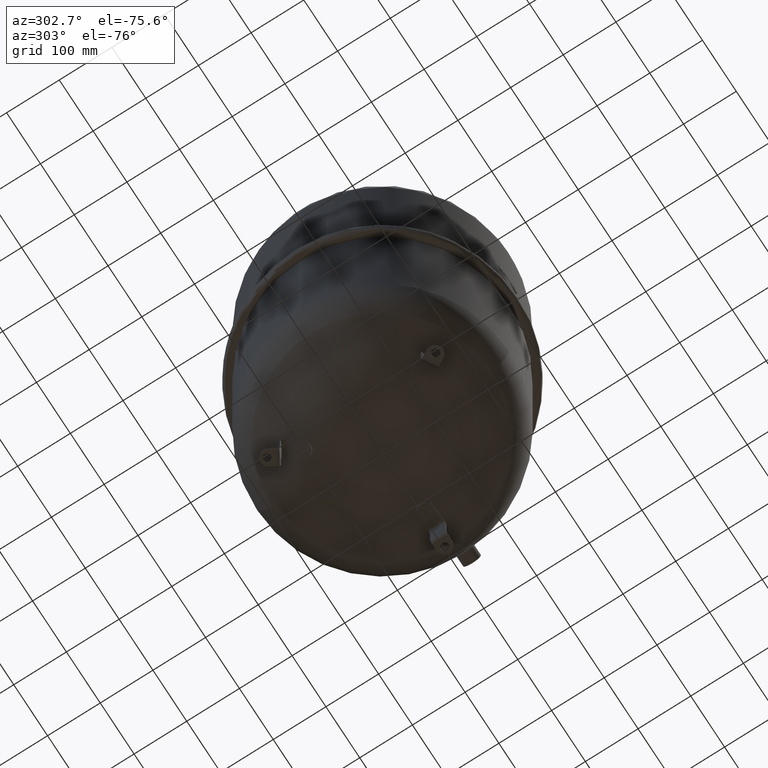
[diagram: clean part render]
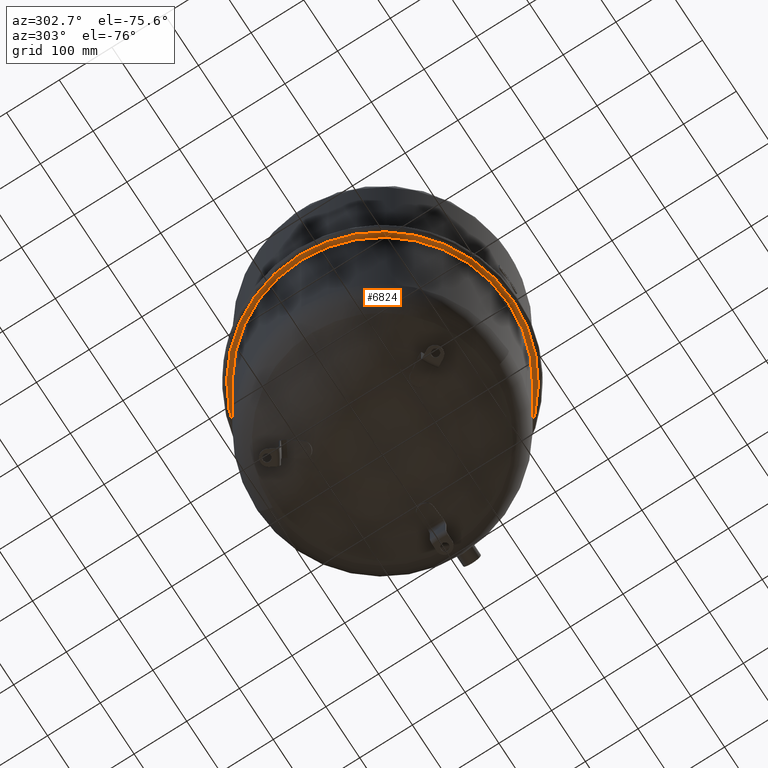
[diagram: same view with one face highlighted and labeled with its STEP entity id]
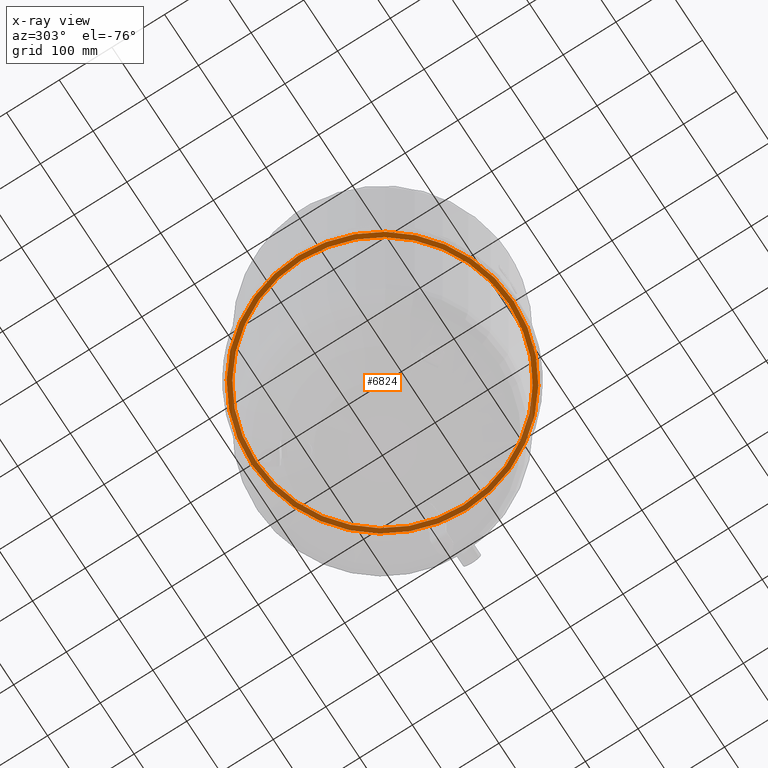
[diagram: x-ray of the same camera — body ghosted, the highlighted face saturated]
A machine part, auxiliary view. The second image highlights one B-rep face of the part: STEP entity #6824.
The next image is the same camera in x-ray: the body ghosted, the highlighted face saturated — about 44% of this face is hidden behind the body in this view.
In plain terms, the highlighted planar face has unit normal (0, 0, -1).
Its self-contained STEP definition (entity closure, byte-faithful):
#6518=CARTESIAN_POINT('',(-240.0,6.582477E-016,449.25));
#6519=VERTEX_POINT('',#6518);
#6528=CARTESIAN_POINT('',(240.0,-2.873230E-014,449.25));
#6529=VERTEX_POINT('',#6528);
#6530=CARTESIAN_POINT('',(0.0,6.582477E-016,449.25));
#6531=DIRECTION('',(0.0,0.0,-1.0));
#6532=DIRECTION('',(-1.0,0.0,0.0));
#6533=AXIS2_PLACEMENT_3D('',#6530,#6531,#6532);
#6534=CIRCLE('',#6533,240.0);
#6535=EDGE_CURVE('',#6519,#6529,#6534,.T.);
#6560=CARTESIAN_POINT('',(0.0,249.00000000000006,449.25));
#6561=VERTEX_POINT('',#6560);
#6571=CARTESIAN_POINT('',(-249.00000000000006,6.582477E-016,449.25));
#6572=VERTEX_POINT('',#6571);
#6573=CARTESIAN_POINT('',(0.0,6.582477E-016,449.25));
#6574=DIRECTION('',(0.0,0.0,-1.0));
#6575=DIRECTION('',(-1.0,0.0,0.0));
#6576=AXIS2_PLACEMENT_3D('',#6573,#6574,#6575);
#6577=CIRCLE('',#6576,249.00000000000006);
#6578=EDGE_CURVE('',#6572,#6561,#6577,.T.);
#6580=CARTESIAN_POINT('',(-3.049270E-014,-249.00000000000006,449.25));
#6581=VERTEX_POINT('',#6580);
#6582=CARTESIAN_POINT('',(0.0,6.582477E-016,449.25));
#6583=DIRECTION('',(0.0,0.0,-1.0));
#6584=DIRECTION('',(-1.0,0.0,0.0));
#6585=AXIS2_PLACEMENT_3D('',#6582,#6583,#6584);
#6586=CIRCLE('',#6585,249.00000000000006);
#6587=EDGE_CURVE('',#6581,#6572,#6586,.T.);
#6794=CARTESIAN_POINT('',(0.0,6.582477E-016,449.25));
#6795=DIRECTION('',(0.0,0.0,-1.0));
#6796=DIRECTION('',(-1.0,0.0,0.0));
#6797=AXIS2_PLACEMENT_3D('',#6794,#6795,#6796);
#6798=CIRCLE('',#6797,249.00000000000006);
#6799=EDGE_CURVE('',#6561,#6581,#6798,.T.);
#6804=CARTESIAN_POINT('',(-244.50000000000003,6.582477E-016,449.25));
#6805=DIRECTION('',(0.0,0.0,-1.0));
#6806=DIRECTION('',(0.0,1.0,0.0));
#6807=AXIS2_PLACEMENT_3D('',#6804,#6805,#6806);
#6808=PLANE('',#6807);
#6809=ORIENTED_EDGE('',*,*,#6578,.T.);
#6810=ORIENTED_EDGE('',*,*,#6799,.T.);
#6811=ORIENTED_EDGE('',*,*,#6587,.T.);
#6812=EDGE_LOOP('',(#6809,#6810,#6811));
#6813=FACE_OUTER_BOUND('',#6812,.T.);
#6814=ORIENTED_EDGE('',*,*,#6535,.F.);
#6815=CARTESIAN_POINT('',(0.0,6.582477E-016,449.25));
#6816=DIRECTION('',(0.0,0.0,-1.0));
#6817=DIRECTION('',(-1.0,0.0,0.0));
#6818=AXIS2_PLACEMENT_3D('',#6815,#6816,#6817);
#6819=CIRCLE('',#6818,240.0);
#6820=EDGE_CURVE('',#6529,#6519,#6819,.T.);
#6821=ORIENTED_EDGE('',*,*,#6820,.F.);
#6822=EDGE_LOOP('',(#6814,#6821));
#6823=FACE_BOUND('',#6822,.T.);
#6824=ADVANCED_FACE('',(#6813,#6823),#6808,.T.);